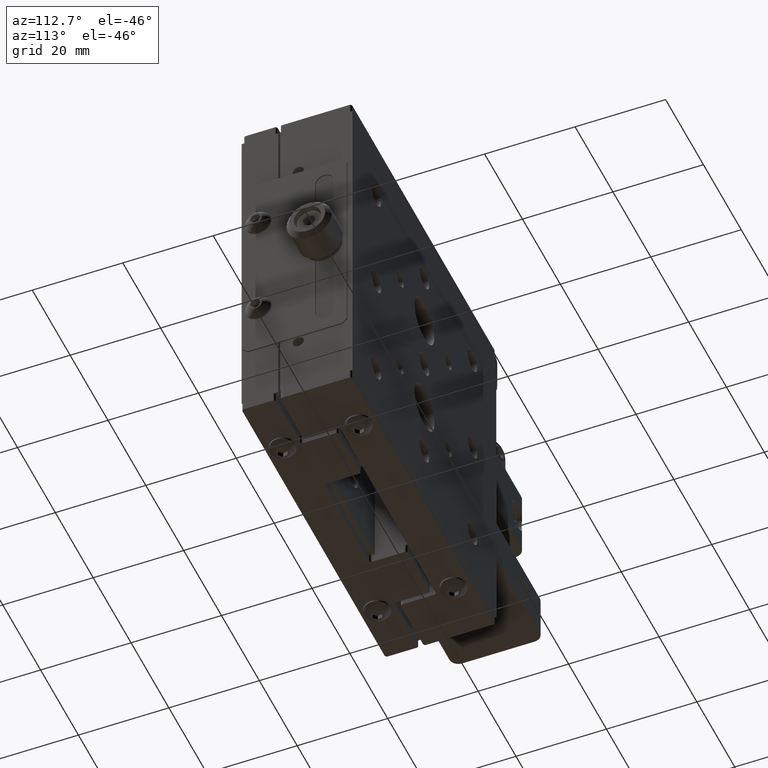
[diagram: clean part render]
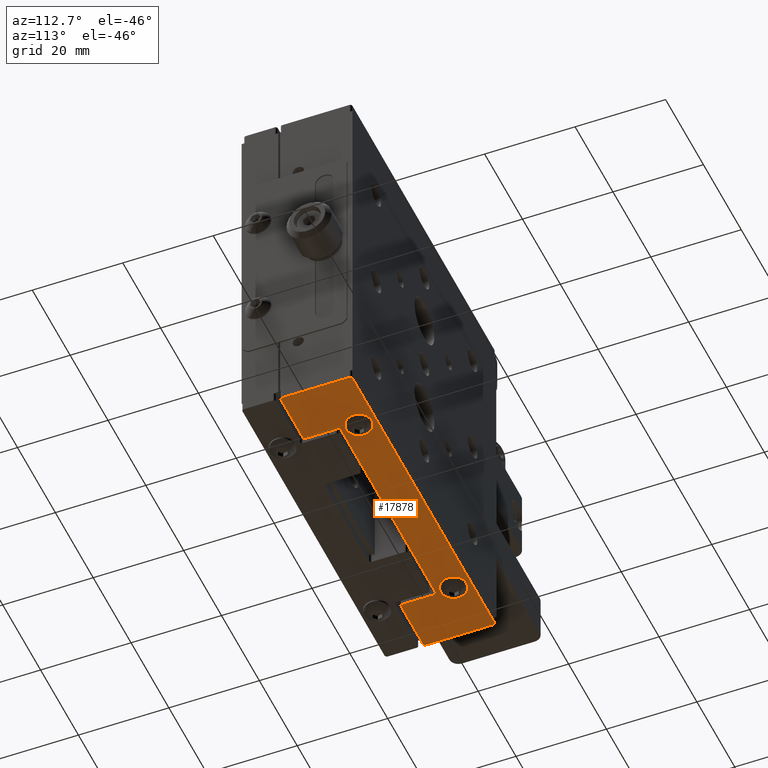
[diagram: same view with one face highlighted and labeled with its STEP entity id]
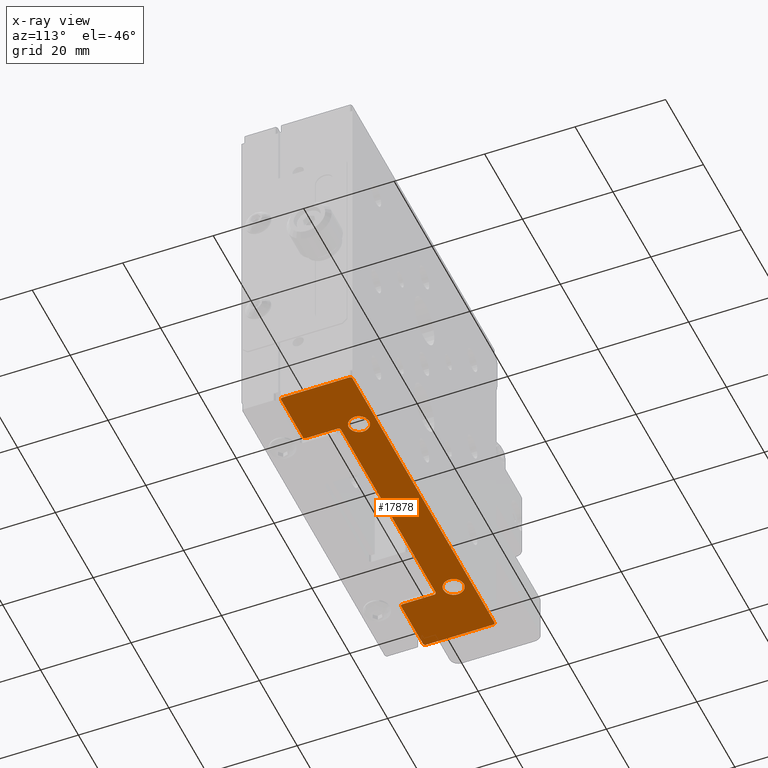
[diagram: x-ray of the same camera — body ghosted, the highlighted face saturated]
A machine part, auxiliary view. The second image highlights one B-rep face of the part: STEP entity #17878.
The next image is the same camera in x-ray: the body ghosted, the highlighted face saturated — about 0% of this face is hidden behind the body in this view.
In plain terms, the highlighted planar face has unit normal (-0, 0, -1).
Its self-contained STEP definition (entity closure, byte-faithful):
#118 = CARTESIAN_POINT ( 'NONE',  ( 36.74980746936886800, -6.654134368212492500, 71.10000000000002300 ) ) ;
#290 = VERTEX_POINT ( 'NONE', #50497 ) ;
#553 = CARTESIAN_POINT ( 'NONE',  ( 36.24980746936893900, 0.8458656317875783400, 71.10000000000002300 ) ) ;
#1432 = VECTOR ( 'NONE', #34659, 1000.000000000000000 ) ;
#1700 = EDGE_CURVE ( 'NONE', #46161, #27523, #21533, .T. ) ;
#1988 = ORIENTED_EDGE ( 'NONE', *, *, #35657, .T. ) ;
#2173 = AXIS2_PLACEMENT_3D ( 'NONE', #13633, #31103, #9350 ) ;
#2319 = ORIENTED_EDGE ( 'NONE', *, *, #49358, .F. ) ;
#2689 = ORIENTED_EDGE ( 'NONE', *, *, #21332, .F. ) ;
#2816 = LINE ( 'NONE', #43543, #1432 ) ;
#2972 = CARTESIAN_POINT ( 'NONE',  ( 48.74980746936886800, -6.654134368212496000, 71.10000000000002300 ) ) ;
#4416 = DIRECTION ( 'NONE',  ( -1.000000000000000000, 9.406963225806781400E-016, 5.162157954508921600E-019 ) ) ;
#4433 = DIRECTION ( 'NONE',  ( -5.162157954509850800E-019, 4.670716073113020800E-018, -1.000000000000000000 ) ) ;
#4505 = VERTEX_POINT ( 'NONE', #20996 ) ;
#4628 = LINE ( 'NONE', #26861, #51736 ) ;
#5659 = VECTOR ( 'NONE', #16270, 1000.000000000000000 ) ;
#5889 = DIRECTION ( 'NONE',  ( -5.162157954508878200E-019, 4.670716073113020800E-018, -1.000000000000000000 ) ) ;
#6068 = DIRECTION ( 'NONE',  ( 1.000000000000000000, -1.484923295436144300E-015, -5.162157954508947600E-019 ) ) ;
#6158 = CIRCLE ( 'NONE', #22016, 0.5000000000000004400 ) ;
#6200 = VERTEX_POINT ( 'NONE', #9871 ) ;
#6220 = ORIENTED_EDGE ( 'NONE', *, *, #40863, .F. ) ;
#6879 = DIRECTION ( 'NONE',  ( 1.000000000000000000, -1.541976423090489100E-015, 0.0000000000000000000 ) ) ;
#7356 = DIRECTION ( 'NONE',  ( 1.000000000000000000, -1.541976423090481800E-015, 0.0000000000000000000 ) ) ;
#7422 = LINE ( 'NONE', #2972, #12300 ) ;
#7636 = CARTESIAN_POINT ( 'NONE',  ( 48.24980746936889600, 8.645865631787552600, 71.10000000000002300 ) ) ;
#7840 = DIRECTION ( 'NONE',  ( 1.000000000000000000, 0.0000000000000000000, 0.0000000000000000000 ) ) ;
#8534 = CIRCLE ( 'NONE', #53120, 0.5000000000000004400 ) ;
#8558 = EDGE_CURVE ( 'NONE', #21613, #6200, #21433, .T. ) ;
#8973 = CIRCLE ( 'NONE', #2173, 0.5000000000000022200 ) ;
#9350 = DIRECTION ( 'NONE',  ( 1.000000000000000000, 2.168404344970999300E-016, 0.0000000000000000000 ) ) ;
#9441 = CARTESIAN_POINT ( 'NONE',  ( -14.75019253063134900, 1.345865631787628300, 71.10000000000002300 ) ) ;
#9571 = ORIENTED_EDGE ( 'NONE', *, *, #49024, .T. ) ;
#9871 = CARTESIAN_POINT ( 'NONE',  ( -27.25019253063141300, 8.645865631787661000, 71.10000000000002300 ) ) ;
#10899 = CARTESIAN_POINT ( 'NONE',  ( -15.25019253063139300, -6.654134368212433900, 71.10000000000002300 ) ) ;
#10946 = CIRCLE ( 'NONE', #54648, 0.5000000000000004400 ) ;
#11190 = FACE_BOUND ( 'NONE', #17566, .T. ) ;
#11206 = ORIENTED_EDGE ( 'NONE', *, *, #57475, .T. ) ;
#12300 = VECTOR ( 'NONE', #43227, 1000.000000000000000 ) ;
#12304 = ORIENTED_EDGE ( 'NONE', *, *, #22225, .T. ) ;
#13309 = LINE ( 'NONE', #30028, #5659 ) ;
#13326 = VERTEX_POINT ( 'NONE', #53420 ) ;
#13367 = DIRECTION ( 'NONE',  ( 1.000000000000000000, -1.734723475976805500E-015, 0.0000000000000000000 ) ) ;
#13633 = CARTESIAN_POINT ( 'NONE',  ( -14.25019253063138300, 0.8458656317876095400, 71.10000000000002300 ) ) ;
#13924 = DIRECTION ( 'NONE',  ( 1.000000000000000000, -1.734723475976799400E-015, 0.0000000000000000000 ) ) ;
#14206 = ORIENTED_EDGE ( 'NONE', *, *, #19859, .T. ) ;
#14615 = AXIS2_PLACEMENT_3D ( 'NONE', #55748, #55933, #16312 ) ;
#16056 = CARTESIAN_POINT ( 'NONE',  ( 35.74980746936888900, 5.345865631787588300, 71.10000000000002300 ) ) ;
#16270 = DIRECTION ( 'NONE',  ( 1.000000000000000000, -1.419300532364653100E-015, -5.162157954508945600E-019 ) ) ;
#16312 = DIRECTION ( 'NONE',  ( 1.000000000000000000, -1.734723475976805500E-015, 0.0000000000000000000 ) ) ;
#16323 = CARTESIAN_POINT ( 'NONE',  ( -14.75019253063139300, -6.654134368212370800, 71.10000000000002300 ) ) ;
#16372 = CARTESIAN_POINT ( 'NONE',  ( -14.75019253063138300, 0.8458656317876286400, 71.10000000000002300 ) ) ;
#16464 = CARTESIAN_POINT ( 'NONE',  ( -26.75019253063142000, 9.145865631787678800, 71.10000000000002300 ) ) ;
#17496 = EDGE_CURVE ( 'NONE', #51301, #55704, #13309, .T. ) ;
#17566 = EDGE_LOOP ( 'NONE', ( #2689, #6220 ) ) ;
#17878 = ADVANCED_FACE ( 'NONE', ( #11190, #33387, #55508 ), #37285, .T. ) ;
#18339 = CARTESIAN_POINT ( 'NONE',  ( 48.24980746936889600, 9.145865631787552600, 71.10000000000002300 ) ) ;
#18599 = VERTEX_POINT ( 'NONE', #46706 ) ;
#18633 = DIRECTION ( 'NONE',  ( 1.000000000000000000, -1.541976423090481800E-015, 0.0000000000000000000 ) ) ;
#18641 = VECTOR ( 'NONE', #46728, 1000.000000000000000 ) ;
#18828 = ORIENTED_EDGE ( 'NONE', *, *, #1700, .T. ) ;
#19680 = ORIENTED_EDGE ( 'NONE', *, *, #52262, .T. ) ;
#19731 = CARTESIAN_POINT ( 'NONE',  ( -14.75019253063139300, -6.654134368212370800, 71.10000000000002300 ) ) ;
#19859 = EDGE_CURVE ( 'NONE', #46458, #46161, #2816, .T. ) ;
#20075 = DIRECTION ( 'NONE',  ( -5.162157954509850800E-019, 4.670716073113020800E-018, -1.000000000000000000 ) ) ;
#20996 = CARTESIAN_POINT ( 'NONE',  ( 48.74980746936889600, 8.645865631787568600, 71.10000000000002300 ) ) ;
#21332 = EDGE_CURVE ( 'NONE', #48531, #13326, #33911, .T. ) ;
#21433 = LINE ( 'NONE', #34192, #18641 ) ;
#21533 = CIRCLE ( 'NONE', #46495, 0.5000000000000004400 ) ;
#21613 = VERTEX_POINT ( 'NONE', #56487 ) ;
#22016 = AXIS2_PLACEMENT_3D ( 'NONE', #31042, #39889, #13367 ) ;
#22225 = EDGE_CURVE ( 'NONE', #18599, #54947, #8973, .T. ) ;
#22749 = DIRECTION ( 'NONE',  ( 1.000000000000000000, -1.517883041479704800E-015, 0.0000000000000000000 ) ) ;
#23071 = LINE ( 'NONE', #9441, #36185 ) ;
#23370 = VERTEX_POINT ( 'NONE', #28259 ) ;
#23383 = VERTEX_POINT ( 'NONE', #43068 ) ;
#23607 = ORIENTED_EDGE ( 'NONE', *, *, #54818, .T. ) ;
#24074 = ORIENTED_EDGE ( 'NONE', *, *, #51336, .T. ) ;
#24138 = EDGE_CURVE ( 'NONE', #23383, #23370, #6158, .T. ) ;
#26428 = CIRCLE ( 'NONE', #56762, 2.250000000000019500 ) ;
#26669 = DIRECTION ( 'NONE',  ( -1.428182466804172900E-016, -1.000000000000000000, -4.670716072860616900E-018 ) ) ;
#26857 = CARTESIAN_POINT ( 'NONE',  ( 48.74980746936889600, 9.145865631787570400, 71.10000000000002300 ) ) ;
#26861 = CARTESIAN_POINT ( 'NONE',  ( -14.75019253063134900, 1.345865631787628300, 71.10000000000002300 ) ) ;
#27375 = VERTEX_POINT ( 'NONE', #118 ) ;
#27523 = VERTEX_POINT ( 'NONE', #42483 ) ;
#28259 = CARTESIAN_POINT ( 'NONE',  ( 48.24980746936886800, -6.654134368212527100, 71.10000000000002300 ) ) ;
#29606 = VERTEX_POINT ( 'NONE', #10899 ) ;
#29629 = CIRCLE ( 'NONE', #30139, 2.250000000000008900 ) ;
#30028 = CARTESIAN_POINT ( 'NONE',  ( -27.25019253063142000, 9.145865631787661000, 71.10000000000002300 ) ) ;
#30139 = AXIS2_PLACEMENT_3D ( 'NONE', #48811, #53465, #53079 ) ;
#30346 = LINE ( 'NONE', #26857, #31717 ) ;
#31042 = CARTESIAN_POINT ( 'NONE',  ( 48.24980746936886800, -6.154134368212495200, 71.10000000000002300 ) ) ;
#31103 = DIRECTION ( 'NONE',  ( 5.162157954509850800E-019, -4.670716073113020800E-018, 1.000000000000000000 ) ) ;
#31717 = VECTOR ( 'NONE', #26669, 1000.000000000000000 ) ;
#31950 = EDGE_LOOP ( 'NONE', ( #39312, #24074, #37746, #19680, #1988, #36954, #9571, #40992, #14206, #18828, #51946, #12304, #33211, #48538, #11206, #23607 ) ) ;
#32210 = EDGE_CURVE ( 'NONE', #54947, #290, #4628, .T. ) ;
#32812 = CARTESIAN_POINT ( 'NONE',  ( -26.75019253063140600, -6.154134368212398300, 71.10000000000002300 ) ) ;
#33211 = ORIENTED_EDGE ( 'NONE', *, *, #32210, .T. ) ;
#33213 = EDGE_CURVE ( 'NONE', #27375, #46458, #56467, .T. ) ;
#33387 = FACE_OUTER_BOUND ( 'NONE', #31950, .T. ) ;
#33473 = DIRECTION ( 'NONE',  ( -5.162157954509850800E-019, 4.670716073113020800E-018, -1.000000000000000000 ) ) ;
#33758 = DIRECTION ( 'NONE',  ( -5.162157954509850800E-019, 4.670716073113020800E-018, -1.000000000000000000 ) ) ;
#33911 = CIRCLE ( 'NONE', #42220, 2.250000000000019500 ) ;
#34192 = CARTESIAN_POINT ( 'NONE',  ( -27.25019253063140600, -6.654134368212399200, 71.10000000000002300 ) ) ;
#34416 = CARTESIAN_POINT ( 'NONE',  ( -26.75019253063141300, 8.645865631787678800, 71.10000000000002300 ) ) ;
#34659 = DIRECTION ( 'NONE',  ( 9.672818102046635300E-015, 1.000000000000000000, 4.670716072860612200E-018 ) ) ;
#35319 = VECTOR ( 'NONE', #55378, 1000.000000000000000 ) ;
#35657 = EDGE_CURVE ( 'NONE', #4505, #23383, #30346, .T. ) ;
#35873 = CARTESIAN_POINT ( 'NONE',  ( 35.74980746936893900, 0.8458656317876025500, 71.10000000000002300 ) ) ;
#36185 = VECTOR ( 'NONE', #4416, 1000.000000000000000 ) ;
#36948 = VERTEX_POINT ( 'NONE', #41393 ) ;
#36954 = ORIENTED_EDGE ( 'NONE', *, *, #24138, .T. ) ;
#37285 = PLANE ( 'NONE',  #43887 ) ;
#37746 = ORIENTED_EDGE ( 'NONE', *, *, #17496, .T. ) ;
#37806 = AXIS2_PLACEMENT_3D ( 'NONE', #48545, #4433, #13924 ) ;
#38861 = DIRECTION ( 'NONE',  ( -5.162157954509850800E-019, 4.670716073113020800E-018, -1.000000000000000000 ) ) ;
#39312 = ORIENTED_EDGE ( 'NONE', *, *, #8558, .T. ) ;
#39422 = DIRECTION ( 'NONE',  ( -5.162157954509850800E-019, 4.670716073113020800E-018, -1.000000000000000000 ) ) ;
#39826 = EDGE_CURVE ( 'NONE', #27523, #18599, #23071, .T. ) ;
#39889 = DIRECTION ( 'NONE',  ( -5.162157954509850800E-019, 4.670716073113020800E-018, -1.000000000000000000 ) ) ;
#40562 = DIRECTION ( 'NONE',  ( -1.318389841742352700E-016, -1.000000000000000000, -4.670716072860616900E-018 ) ) ;
#40863 = EDGE_CURVE ( 'NONE', #13326, #48531, #26428, .T. ) ;
#40992 = ORIENTED_EDGE ( 'NONE', *, *, #33213, .T. ) ;
#41393 = CARTESIAN_POINT ( 'NONE',  ( 33.49980746936888900, 5.345865631787591900, 71.10000000000002300 ) ) ;
#41984 = CARTESIAN_POINT ( 'NONE',  ( 36.24980746936879700, -6.154134368212485400, 71.10000000000002300 ) ) ;
#42081 = DIRECTION ( 'NONE',  ( 1.000000000000000000, -1.734723475976805500E-015, 0.0000000000000000000 ) ) ;
#42220 = AXIS2_PLACEMENT_3D ( 'NONE', #42639, #33758, #7356 ) ;
#42483 = CARTESIAN_POINT ( 'NONE',  ( 35.74980746936887500, 1.345865631787576100, 71.10000000000002300 ) ) ;
#42539 = CARTESIAN_POINT ( 'NONE',  ( 37.99980746936889600, 5.345865631787584800, 71.10000000000002300 ) ) ;
#42639 = CARTESIAN_POINT ( 'NONE',  ( -14.25019253063137900, 5.345865631787662900, 71.10000000000002300 ) ) ;
#42952 = LINE ( 'NONE', #16323, #35319 ) ;
#43068 = CARTESIAN_POINT ( 'NONE',  ( 48.74980746936886800, -6.154134368212495200, 71.10000000000002300 ) ) ;
#43227 = DIRECTION ( 'NONE',  ( -1.000000000000000000, 1.484923295436144300E-015, 5.162157954508947600E-019 ) ) ;
#43543 = CARTESIAN_POINT ( 'NONE',  ( 36.24980746936888200, 1.345865631787576100, 71.10000000000002300 ) ) ;
#43658 = DIRECTION ( 'NONE',  ( 1.000000000000000000, 0.0000000000000000000, 0.0000000000000000000 ) ) ;
#43887 = AXIS2_PLACEMENT_3D ( 'NONE', #19731, #5889, #6068 ) ;
#44921 = CIRCLE ( 'NONE', #37806, 0.5000000000000022200 ) ;
#45130 = DIRECTION ( 'NONE',  ( 5.162157954509850800E-019, -4.670716073113020800E-018, 1.000000000000000000 ) ) ;
#45779 = CIRCLE ( 'NONE', #55245, 2.250000000000008900 ) ;
#46161 = VERTEX_POINT ( 'NONE', #553 ) ;
#46458 = VERTEX_POINT ( 'NONE', #41984 ) ;
#46495 = AXIS2_PLACEMENT_3D ( 'NONE', #35873, #45130, #22749 ) ;
#46706 = CARTESIAN_POINT ( 'NONE',  ( -14.25019253063134900, 1.345865631787628300, 71.10000000000002300 ) ) ;
#46728 = DIRECTION ( 'NONE',  ( -1.613863754308753800E-015, 1.000000000000000000, 4.670716072860616900E-018 ) ) ;
#47889 = EDGE_CURVE ( 'NONE', #290, #29606, #44921, .T. ) ;
#48531 = VERTEX_POINT ( 'NONE', #54215 ) ;
#48538 = ORIENTED_EDGE ( 'NONE', *, *, #47889, .T. ) ;
#48545 = CARTESIAN_POINT ( 'NONE',  ( -15.25019253063139300, -6.154134368212401900, 71.10000000000002300 ) ) ;
#48811 = CARTESIAN_POINT ( 'NONE',  ( 35.74980746936888900, 5.345865631787588300, 71.10000000000002300 ) ) ;
#49024 = EDGE_CURVE ( 'NONE', #23370, #27375, #7422, .T. ) ;
#49139 = DIRECTION ( 'NONE',  ( -5.162157954509850800E-019, 4.670716073113020800E-018, -1.000000000000000000 ) ) ;
#49358 = EDGE_CURVE ( 'NONE', #51127, #36948, #29629, .T. ) ;
#49630 = CARTESIAN_POINT ( 'NONE',  ( -26.75019253063140600, -6.654134368212399200, 71.10000000000002300 ) ) ;
#50497 = CARTESIAN_POINT ( 'NONE',  ( -14.75019253063139300, -6.154134368212401900, 71.10000000000002300 ) ) ;
#51127 = VERTEX_POINT ( 'NONE', #42539 ) ;
#51301 = VERTEX_POINT ( 'NONE', #16464 ) ;
#51336 = EDGE_CURVE ( 'NONE', #6200, #51301, #8534, .T. ) ;
#51419 = ORIENTED_EDGE ( 'NONE', *, *, #56987, .F. ) ;
#51736 = VECTOR ( 'NONE', #40562, 1000.000000000000000 ) ;
#51946 = ORIENTED_EDGE ( 'NONE', *, *, #39826, .T. ) ;
#52262 = EDGE_CURVE ( 'NONE', #55704, #4505, #10946, .T. ) ;
#53079 = DIRECTION ( 'NONE',  ( 1.000000000000000000, -1.541976423090489100E-015, 0.0000000000000000000 ) ) ;
#53120 = AXIS2_PLACEMENT_3D ( 'NONE', #34416, #38861, #7840 ) ;
#53420 = CARTESIAN_POINT ( 'NONE',  ( -12.00019253063137000, 5.345865631787659400, 71.10000000000002300 ) ) ;
#53465 = DIRECTION ( 'NONE',  ( -5.162157954509850800E-019, 4.670716073113020800E-018, -1.000000000000000000 ) ) ;
#53804 = CARTESIAN_POINT ( 'NONE',  ( -14.25019253063137900, 5.345865631787662900, 71.10000000000002300 ) ) ;
#54215 = CARTESIAN_POINT ( 'NONE',  ( -16.50019253063139100, 5.345865631787666500, 71.10000000000002300 ) ) ;
#54273 = CIRCLE ( 'NONE', #54393, 0.5000000000000004400 ) ;
#54393 = AXIS2_PLACEMENT_3D ( 'NONE', #32812, #20075, #42081 ) ;
#54648 = AXIS2_PLACEMENT_3D ( 'NONE', #7636, #39422, #43658 ) ;
#54724 = VERTEX_POINT ( 'NONE', #49630 ) ;
#54818 = EDGE_CURVE ( 'NONE', #54724, #21613, #54273, .T. ) ;
#54838 = EDGE_LOOP ( 'NONE', ( #51419, #2319 ) ) ;
#54947 = VERTEX_POINT ( 'NONE', #16372 ) ;
#55245 = AXIS2_PLACEMENT_3D ( 'NONE', #16056, #33473, #6879 ) ;
#55378 = DIRECTION ( 'NONE',  ( -1.000000000000000000, 1.484923295436144300E-015, 5.162157954508947600E-019 ) ) ;
#55508 = FACE_BOUND ( 'NONE', #54838, .T. ) ;
#55704 = VERTEX_POINT ( 'NONE', #18339 ) ;
#55748 = CARTESIAN_POINT ( 'NONE',  ( 36.74980746936879700, -6.154134368212492500, 71.10000000000002300 ) ) ;
#55933 = DIRECTION ( 'NONE',  ( -5.162157954509850800E-019, 4.670716073113020800E-018, -1.000000000000000000 ) ) ;
#56467 = CIRCLE ( 'NONE', #14615, 0.5000000000000004400 ) ;
#56487 = CARTESIAN_POINT ( 'NONE',  ( -27.25019253063140600, -6.154134368212398300, 71.10000000000002300 ) ) ;
#56762 = AXIS2_PLACEMENT_3D ( 'NONE', #53804, #49139, #18633 ) ;
#56987 = EDGE_CURVE ( 'NONE', #36948, #51127, #45779, .T. ) ;
#57475 = EDGE_CURVE ( 'NONE', #29606, #54724, #42952, .T. ) ;